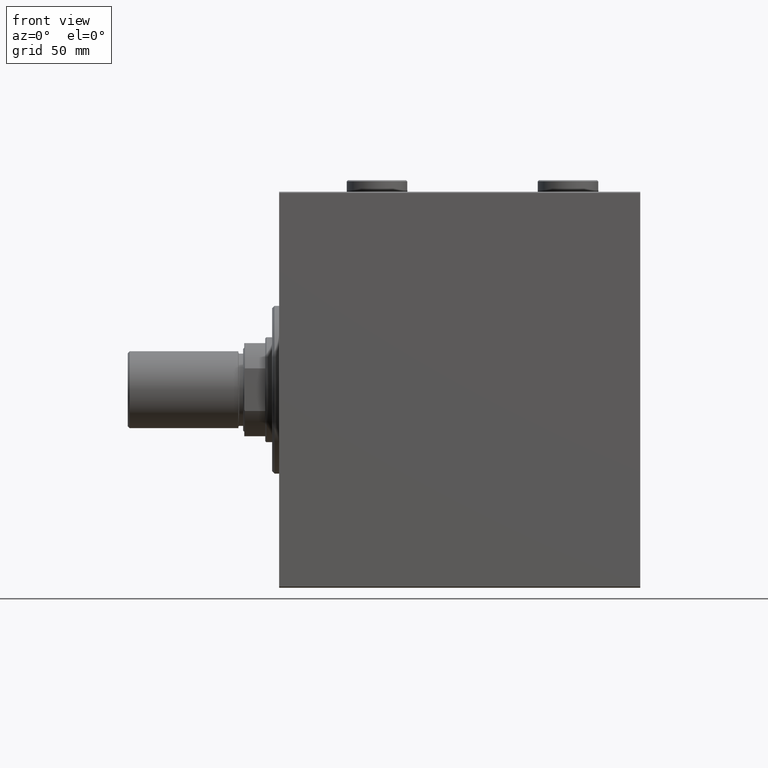
[diagram: clean part render]
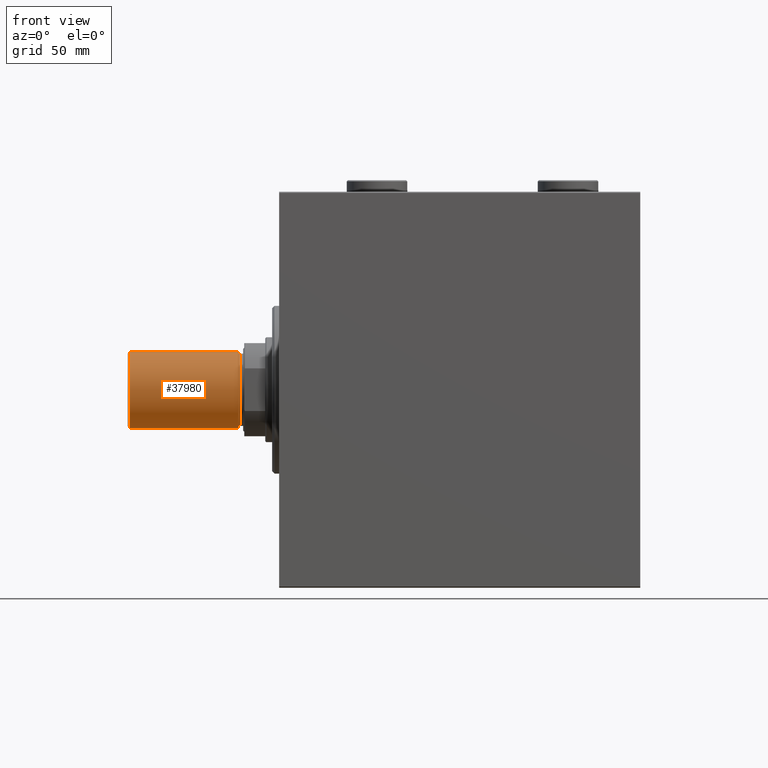
[diagram: same view with one face highlighted and labeled with its STEP entity id]
A machine part, front view. The second image highlights one B-rep face of the part: STEP entity #37980.
In plain terms, the highlighted cylindrical surface (partial cylindrical patch) has radius 16.5 mm, axis along (-1, -0, 0).
Its self-contained STEP definition (entity closure, byte-faithful):
#3800 = AXIS2_PLACEMENT_3D ( 'NONE', #31945, #28230, #35248 ) ;
#5117 = CIRCLE ( 'NONE', #11053, 16.50000000000000000 ) ;
#6520 = FACE_OUTER_BOUND ( 'NONE', #18769, .T. ) ;
#6772 = EDGE_CURVE ( 'NONE', #38887, #45423, #46104, .T. ) ;
#6937 = CARTESIAN_POINT ( 'NONE',  ( 16.50000000000000000, 2.020667218593133100E-15, 0.7999999999999951594 ) ) ;
#7441 = DIRECTION ( 'NONE',  ( -0.000000000000000000, -0.000000000000000000, -1.000000000000000000 ) ) ;
#8782 = VERTEX_POINT ( 'NONE', #9664 ) ;
#9664 = CARTESIAN_POINT ( 'NONE',  ( -16.50000000000000000, 0.000000000000000000, 0.7999999999999951594 ) ) ;
#11053 = AXIS2_PLACEMENT_3D ( 'NONE', #17317, #34809, #27143 ) ;
#12009 = DIRECTION ( 'NONE',  ( -0.000000000000000000, -0.000000000000000000, -1.000000000000000000 ) ) ;
#13299 = DIRECTION ( 'NONE',  ( 1.000000000000000000, 0.000000000000000000, 0.000000000000000000 ) ) ;
#15458 = EDGE_CURVE ( 'NONE', #38887, #8782, #30003, .T. ) ;
#15896 = EDGE_CURVE ( 'NONE', #45423, #20877, #36946, .T. ) ;
#16137 = DIRECTION ( 'NONE',  ( 0.000000000000000000, 0.000000000000000000, 1.000000000000000000 ) ) ;
#17317 = CARTESIAN_POINT ( 'NONE',  ( 0.000000000000000000, 0.000000000000000000, 0.7999999999999951594 ) ) ;
#18769 = EDGE_LOOP ( 'NONE', ( #30957, #42391, #40559, #43306 ) ) ;
#20877 = VERTEX_POINT ( 'NONE', #6937 ) ;
#24064 = CYLINDRICAL_SURFACE ( 'NONE', #3800, 16.50000000000000000 ) ;
#24653 = VECTOR ( 'NONE', #7441, 1000.000000000000000 ) ;
#25995 = AXIS2_PLACEMENT_3D ( 'NONE', #40900, #16137, #13299 ) ;
#26463 = CARTESIAN_POINT ( 'NONE',  ( -16.50000000000000000, 0.000000000000000000, 47.50000000000000000 ) ) ;
#27143 = DIRECTION ( 'NONE',  ( 1.000000000000000000, 0.000000000000000000, 0.000000000000000000 ) ) ;
#28230 = DIRECTION ( 'NONE',  ( -0.000000000000000000, -0.000000000000000000, -1.000000000000000000 ) ) ;
#30003 = LINE ( 'NONE', #44261, #30563 ) ;
#30563 = VECTOR ( 'NONE', #12009, 1000.000000000000000 ) ;
#30957 = ORIENTED_EDGE ( 'NONE', *, *, #15896, .F. ) ;
#31945 = CARTESIAN_POINT ( 'NONE',  ( 0.000000000000000000, 0.000000000000000000, 47.50000000000000000 ) ) ;
#32784 = EDGE_CURVE ( 'NONE', #8782, #20877, #5117, .T. ) ;
#33120 = CARTESIAN_POINT ( 'NONE',  ( 16.50000000000000000, 2.020667218593133100E-15, 47.50000000000000000 ) ) ;
#34809 = DIRECTION ( 'NONE',  ( -0.000000000000000000, -0.000000000000000000, 1.000000000000000000 ) ) ;
#35248 = DIRECTION ( 'NONE',  ( -1.000000000000000000, 0.000000000000000000, 0.000000000000000000 ) ) ;
#36946 = LINE ( 'NONE', #33120, #24653 ) ;
#37980 = ADVANCED_FACE ( 'NONE', ( #6520 ), #24064, .T. ) ;
#38887 = VERTEX_POINT ( 'NONE', #26463 ) ;
#40559 = ORIENTED_EDGE ( 'NONE', *, *, #15458, .T. ) ;
#40900 = CARTESIAN_POINT ( 'NONE',  ( 0.000000000000000000, 0.000000000000000000, 47.50000000000000000 ) ) ;
#42391 = ORIENTED_EDGE ( 'NONE', *, *, #6772, .F. ) ;
#43306 = ORIENTED_EDGE ( 'NONE', *, *, #32784, .T. ) ;
#44261 = CARTESIAN_POINT ( 'NONE',  ( -16.50000000000000000, 0.000000000000000000, 47.50000000000000000 ) ) ;
#44312 = CARTESIAN_POINT ( 'NONE',  ( 16.50000000000000000, 2.020667218593133100E-15, 47.50000000000000000 ) ) ;
#45423 = VERTEX_POINT ( 'NONE', #44312 ) ;
#46104 = CIRCLE ( 'NONE', #25995, 16.50000000000000000 ) ;